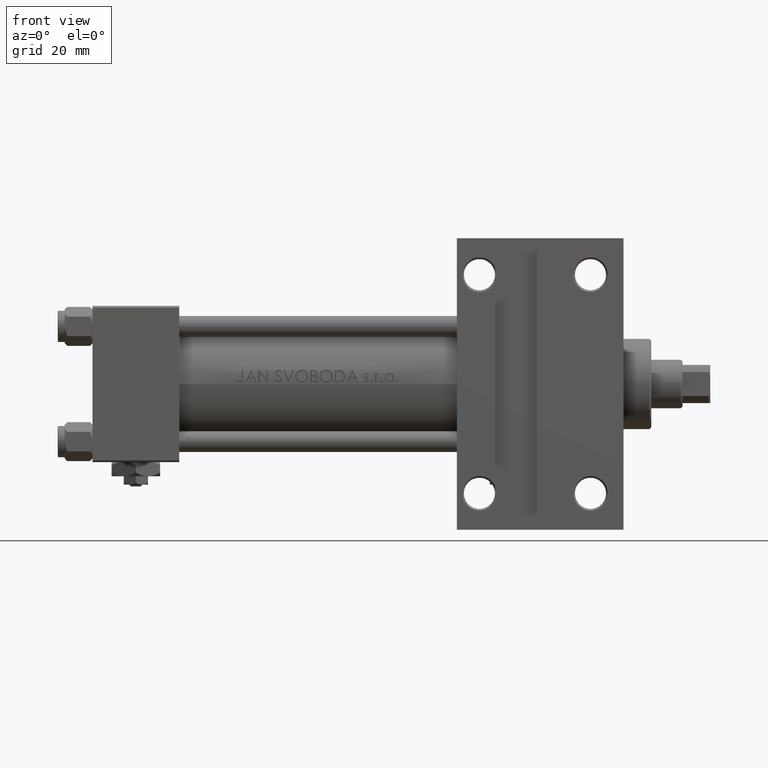
[diagram: clean part render]
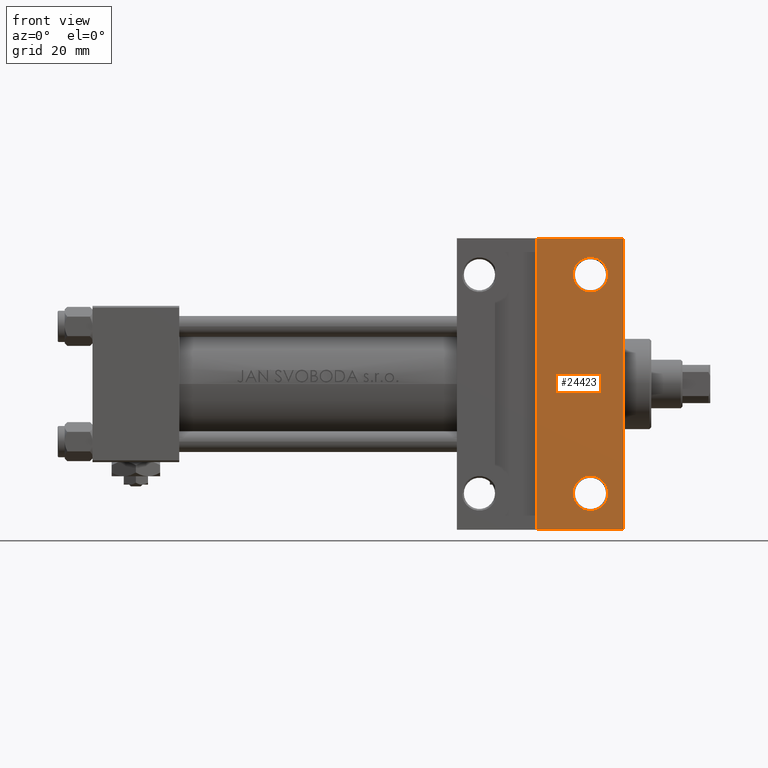
[diagram: same view with one face highlighted and labeled with its STEP entity id]
A machine part, front view. The second image highlights one B-rep face of the part: STEP entity #24423.
In plain terms, the highlighted planar face has unit normal (0, -1, -0).
Its self-contained STEP definition (entity closure, byte-faithful):
#774 = ORIENTED_EDGE ( 'NONE', *, *, #29733, .T. ) ;
#819 = PLANE ( 'NONE',  #16097 ) ;
#1311 = EDGE_CURVE ( 'NONE', #4228, #36840, #42091, .T. ) ;
#2636 = CARTESIAN_POINT ( 'NONE',  ( 143.5000000000000284, 31.50000000000000000, -22.49999999999999645 ) ) ;
#3130 = CARTESIAN_POINT ( 'NONE',  ( 105.0000000000000142, 41.99999999999999289, -22.50000000000000000 ) ) ;
#3835 = FACE_BOUND ( 'NONE', #15004, .T. ) ;
#4228 = VERTEX_POINT ( 'NONE', #25672 ) ;
#4586 = ORIENTED_EDGE ( 'NONE', *, *, #6736, .T. ) ;
#6010 = EDGE_LOOP ( 'NONE', ( #13066, #774 ) ) ;
#6458 = ORIENTED_EDGE ( 'NONE', *, *, #43813, .T. ) ;
#6460 = DIRECTION ( 'NONE',  ( -1.000000000000000000, -0.000000000000000000, -0.000000000000000000 ) ) ;
#6711 = DIRECTION ( 'NONE',  ( -0.000000000000000000, -1.000000000000000000, -0.000000000000000000 ) ) ;
#6736 = EDGE_CURVE ( 'NONE', #36840, #4228, #49491, .T. ) ;
#7590 = CARTESIAN_POINT ( 'NONE',  ( 143.5000000000000284, -31.50000000000000000, -22.50000000000000000 ) ) ;
#7895 = DIRECTION ( 'NONE',  ( 1.000000000000000000, 0.000000000000000000, 0.000000000000000000 ) ) ;
#8090 = DIRECTION ( 'NONE',  ( 0.000000000000000000, 1.000000000000000000, 0.000000000000000000 ) ) ;
#8354 = AXIS2_PLACEMENT_3D ( 'NONE', #2636, #37845, #18712 ) ;
#8812 = VERTEX_POINT ( 'NONE', #46345 ) ;
#10188 = CARTESIAN_POINT ( 'NONE',  ( 152.9999999999999716, -42.00000000000000711, -22.50000000000000000 ) ) ;
#11337 = VERTEX_POINT ( 'NONE', #38356 ) ;
#12373 = VECTOR ( 'NONE', #37548, 1000.000000000000000 ) ;
#13066 = ORIENTED_EDGE ( 'NONE', *, *, #22618, .T. ) ;
#13225 = VECTOR ( 'NONE', #7895, 1000.000000000000000 ) ;
#13826 = VERTEX_POINT ( 'NONE', #41467 ) ;
#14448 = CIRCLE ( 'NONE', #22488, 4.999499999999948763 ) ;
#14896 = LINE ( 'NONE', #45088, #12373 ) ;
#15004 = EDGE_LOOP ( 'NONE', ( #4586, #28824 ) ) ;
#16097 = AXIS2_PLACEMENT_3D ( 'NONE', #23688, #16149, #46093 ) ;
#16149 = DIRECTION ( 'NONE',  ( 0.000000000000000000, 7.709882115452476934E-17, -1.000000000000000000 ) ) ;
#17643 = VERTEX_POINT ( 'NONE', #41403 ) ;
#18164 = AXIS2_PLACEMENT_3D ( 'NONE', #30114, #45482, #22070 ) ;
#18712 = DIRECTION ( 'NONE',  ( 0.000000000000000000, 1.000000000000000000, 0.000000000000000000 ) ) ;
#19242 = CARTESIAN_POINT ( 'NONE',  ( 138.5005000000000166, 31.50000000000000000, -22.49999999999999645 ) ) ;
#22019 = EDGE_CURVE ( 'NONE', #13826, #44753, #30327, .T. ) ;
#22070 = DIRECTION ( 'NONE',  ( 0.000000000000000000, 1.000000000000000000, 0.000000000000000000 ) ) ;
#22287 = VERTEX_POINT ( 'NONE', #10188 ) ;
#22488 = AXIS2_PLACEMENT_3D ( 'NONE', #7590, #38529, #8090 ) ;
#22618 = EDGE_CURVE ( 'NONE', #8812, #11337, #42020, .T. ) ;
#23688 = CARTESIAN_POINT ( 'NONE',  ( 153.0000000000000284, 22.50000000000000355, -22.49999999999999645 ) ) ;
#24423 = ADVANCED_FACE ( 'NONE', ( #30975, #3835, #30722 ), #819, .T. ) ;
#25546 = LINE ( 'NONE', #40915, #47820 ) ;
#25672 = CARTESIAN_POINT ( 'NONE',  ( 148.4995000000000118, 31.50000000000000000, -22.49999999999999645 ) ) ;
#26801 = CARTESIAN_POINT ( 'NONE',  ( 127.9999999999999432, -41.99999999999999289, -22.50000000000000000 ) ) ;
#27516 = AXIS2_PLACEMENT_3D ( 'NONE', #28224, #43343, #28721 ) ;
#28224 = CARTESIAN_POINT ( 'NONE',  ( 143.5000000000000284, -31.50000000000000000, -22.50000000000000000 ) ) ;
#28721 = DIRECTION ( 'NONE',  ( 0.000000000000000000, 1.000000000000000000, 0.000000000000000000 ) ) ;
#28824 = ORIENTED_EDGE ( 'NONE', *, *, #1311, .T. ) ;
#29521 = EDGE_LOOP ( 'NONE', ( #37467, #6458, #49517, #43851 ) ) ;
#29733 = EDGE_CURVE ( 'NONE', #11337, #8812, #14448, .T. ) ;
#30114 = CARTESIAN_POINT ( 'NONE',  ( 143.5000000000000284, 31.50000000000000000, -22.49999999999999645 ) ) ;
#30327 = LINE ( 'NONE', #41170, #49194 ) ;
#30722 = FACE_BOUND ( 'NONE', #6010, .T. ) ;
#30975 = FACE_OUTER_BOUND ( 'NONE', #29521, .T. ) ;
#36840 = VERTEX_POINT ( 'NONE', #19242 ) ;
#37467 = ORIENTED_EDGE ( 'NONE', *, *, #22019, .F. ) ;
#37548 = DIRECTION ( 'NONE',  ( 0.000000000000000000, -1.000000000000000000, -7.709882115452476934E-17 ) ) ;
#37591 = LINE ( 'NONE', #3130, #13225 ) ;
#37845 = DIRECTION ( 'NONE',  ( -0.000000000000000000, -7.709882115452476934E-17, 1.000000000000000000 ) ) ;
#38356 = CARTESIAN_POINT ( 'NONE',  ( 148.4994999999999550, -31.50000000000000000, -22.50000000000000000 ) ) ;
#38529 = DIRECTION ( 'NONE',  ( -0.000000000000000000, -7.709882115452476934E-17, 1.000000000000000000 ) ) ;
#40915 = CARTESIAN_POINT ( 'NONE',  ( 105.0000000000000000, -42.00000000000000711, -22.50000000000000000 ) ) ;
#41170 = CARTESIAN_POINT ( 'NONE',  ( 127.9999999999999432, -41.99999999999999289, -22.50000000000000000 ) ) ;
#41403 = CARTESIAN_POINT ( 'NONE',  ( 152.9999999999999716, 41.99999999999999289, -22.50000000000000000 ) ) ;
#41467 = CARTESIAN_POINT ( 'NONE',  ( 127.9999999999999432, 41.99999999999999289, -22.50000000000000000 ) ) ;
#42020 = CIRCLE ( 'NONE', #27516, 4.999499999999948763 ) ;
#42091 = CIRCLE ( 'NONE', #8354, 4.999499999999983402 ) ;
#42116 = EDGE_CURVE ( 'NONE', #17643, #22287, #14896, .T. ) ;
#43343 = DIRECTION ( 'NONE',  ( -0.000000000000000000, -7.709882115452476934E-17, 1.000000000000000000 ) ) ;
#43813 = EDGE_CURVE ( 'NONE', #13826, #17643, #37591, .T. ) ;
#43851 = ORIENTED_EDGE ( 'NONE', *, *, #48964, .T. ) ;
#44753 = VERTEX_POINT ( 'NONE', #26801 ) ;
#45088 = CARTESIAN_POINT ( 'NONE',  ( 153.0000000000000284, 22.50000000000000355, -22.49999999999999645 ) ) ;
#45482 = DIRECTION ( 'NONE',  ( -0.000000000000000000, -7.709882115452476934E-17, 1.000000000000000000 ) ) ;
#46093 = DIRECTION ( 'NONE',  ( 0.000000000000000000, 1.000000000000000000, 7.709882115452476934E-17 ) ) ;
#46345 = CARTESIAN_POINT ( 'NONE',  ( 138.5005000000000734, -31.50000000000000000, -22.50000000000000000 ) ) ;
#47820 = VECTOR ( 'NONE', #6460, 1000.000000000000000 ) ;
#48964 = EDGE_CURVE ( 'NONE', #22287, #44753, #25546, .T. ) ;
#49194 = VECTOR ( 'NONE', #6711, 1000.000000000000000 ) ;
#49491 = CIRCLE ( 'NONE', #18164, 4.999499999999983402 ) ;
#49517 = ORIENTED_EDGE ( 'NONE', *, *, #42116, .T. ) ;